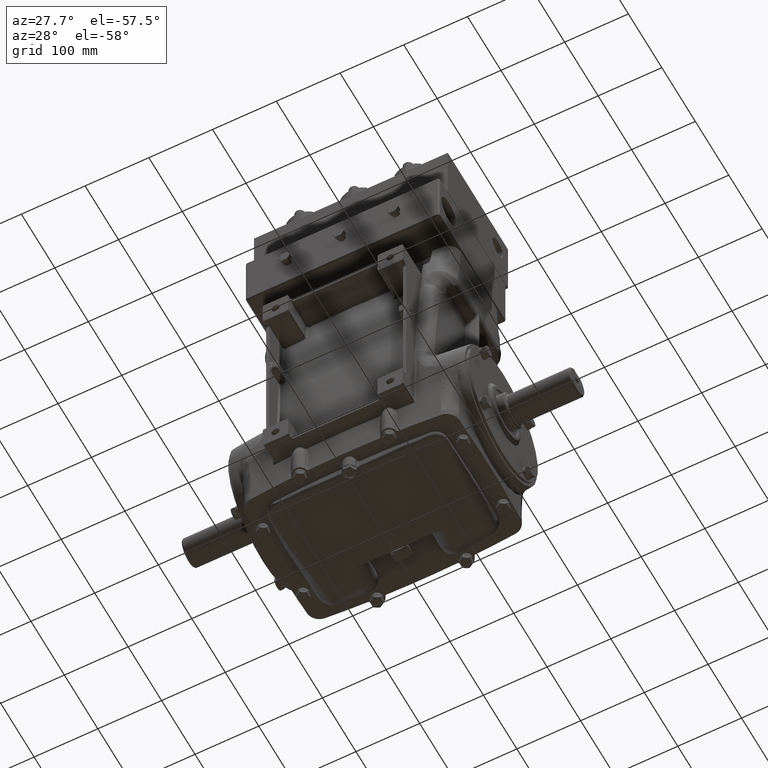
[diagram: clean part render]
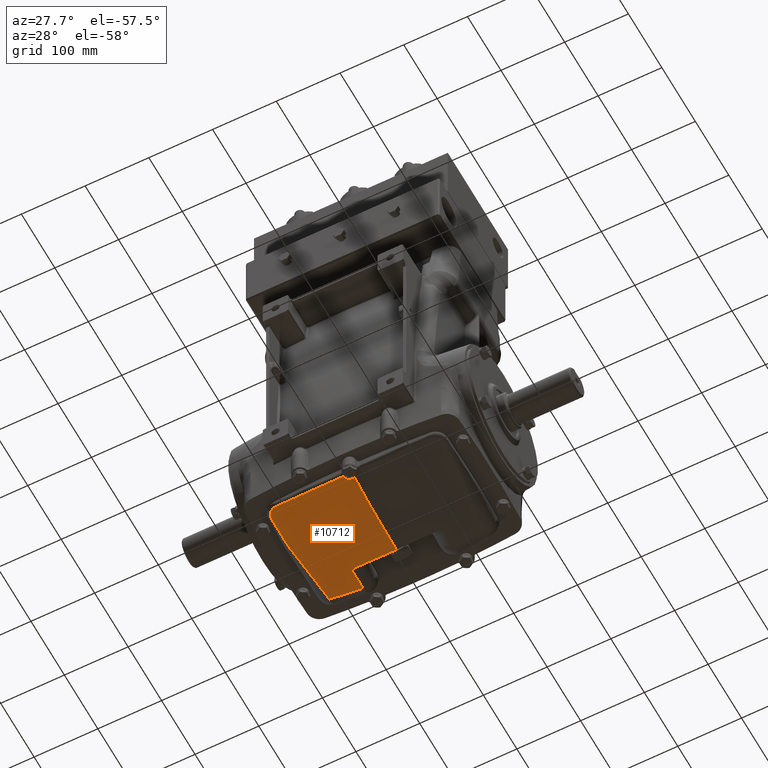
[diagram: same view with one face highlighted and labeled with its STEP entity id]
A machine part, auxiliary view. The second image highlights one B-rep face of the part: STEP entity #10712.
In plain terms, the highlighted toroidal blend (fillet) surface has major radius 300 mm and minor (blend) radius 700 mm.
Its self-contained STEP definition (entity closure, byte-faithful):
#453 = B_SPLINE_CURVE_WITH_KNOTS ( 'NONE', 3,
 ( #16055, #35450, #11074, #4051, #61835, #30515, #80458, #41617 ),
 .UNSPECIFIED., .F., .F.,
 ( 4, 2, 2, 4 ),
 ( 0.006022522450713315399, 0.007529121385804944146, 0.009035720320896573760, 0.01204891819107983299 ),
 .UNSPECIFIED. ) ;
#562 = VERTEX_POINT ( 'NONE', #38706 ) ;
#588 = CARTESIAN_POINT ( 'NONE',  ( -5.081512726748598219, -3.407563633568248207, -5.306289430408320129 ) ) ;
#838 = CARTESIAN_POINT ( 'NONE',  ( -5.071750371976681215, 0.6510181333602451659, -5.787947540946589697 ) ) ;
#1378 = B_SPLINE_CURVE_WITH_KNOTS ( 'NONE', 3,
 ( #24879, #49212, #50036, #68203, #41784, #66968 ),
 .UNSPECIFIED., .F., .F.,
 ( 4, 2, 4 ),
 ( 1.999312279308687694E-07, 0.03093238034559044405, 0.06186456075995295373 ),
 .UNSPECIFIED. ) ;
#2032 = CARTESIAN_POINT ( 'NONE',  ( -2.434261824659195828, 1.606639635857288750, -6.064947200536431104 ) ) ;
#2239 = B_SPLINE_CURVE_WITH_KNOTS ( 'NONE', 3,
 ( #26619, #44353, #6799, #57531, #76569, #13393, #45561, #27414, #20418, #588, #52557, #14619, #77784, #38179, #25802, #39785, #39378, #32805, #69535, #64954, #50947, #70750, #64547, #51750, #57941, #38568 ),
 .UNSPECIFIED., .F., .F.,
 ( 4, 2, 2, 2, 2, 2, 2, 2, 2, 2, 2, 2, 4 ),
 ( 0.000000000000000000, 0.001393468656929867412, 0.002786937313859734824, 0.005573874627719434954, 0.006967343284649294560, 0.008360811941579152431, 0.01114774925543880399, 0.01254121791236861329, 0.01393468656929842779, 0.01672162388315804812, 0.01811509254008786610, 0.01950856119701768060, 0.02229549851087730961 ),
 .UNSPECIFIED. ) ;
#3158 = ORIENTED_EDGE ( 'NONE', *, *, #50038, .T. ) ;
#4051 = CARTESIAN_POINT ( 'NONE',  ( -0.07879009264106012767, -3.369263573939517364, -5.647185192691272171 ) ) ;
#4589 = CARTESIAN_POINT ( 'NONE',  ( -5.254405996074729579, -0.7456722834129653199, -5.667711675632794766 ) ) ;
#4806 = EDGE_CURVE ( 'NONE', #50058, #33288, #1378, .T. ) ;
#4808 = CARTESIAN_POINT ( 'NONE',  ( -4.840242302779922845, 2.899656050760234027, -5.821340785861177203 ) ) ;
#5004 = CARTESIAN_POINT ( 'NONE',  ( -5.325471115806772460, -1.473329931211842192, -5.579392218848997942 ) ) ;
#5427 = CARTESIAN_POINT ( 'NONE',  ( -5.334166308895317066, -1.588840135189024672, -5.563929529875010438 ) ) ;
#5826 = CARTESIAN_POINT ( 'NONE',  ( -5.198477331368216880, -0.2868187684920702751, -5.714774087625277055 ) ) ;
#6253 = CARTESIAN_POINT ( 'NONE',  ( -0.4877294735864423081, -3.659535562739759218, -5.586873153588124197 ) ) ;
#6291 = ORIENTED_EDGE ( 'NONE', *, *, #62702, .T. ) ;
#6644 = CARTESIAN_POINT ( 'NONE',  ( -4.968017340805079840, 1.438922390327193490, -5.823707808902630845 ) ) ;
#6799 = CARTESIAN_POINT ( 'NONE',  ( -4.844032478405734032, -3.492783821194469507, -5.320111385042866736 ) ) ;
#7034 = CARTESIAN_POINT ( 'NONE',  ( -4.968713628097812141, 1.433229839344952072, -5.823538398559389151 ) ) ;
#8476 = CARTESIAN_POINT ( 'NONE',  ( 0.000000000000000000, 1.824751546699278082, 33.22893919295996312 ) ) ;
#8778 = DIRECTION ( 'NONE',  ( 0.000000000000000000, 0.000000000000000000, 1.000000000000000000 ) ) ;
#9053 = CARTESIAN_POINT ( 'NONE',  ( -2.595490492864124032, 1.628047475268865396, -6.054802391501787007 ) ) ;
#10385 = CARTESIAN_POINT ( 'NONE',  ( -5.185673076906478940, -0.1882317149526777922, -5.723883935373456744 ) ) ;
#10712 = ADVANCED_FACE ( 'NONE', ( #71637 ), #29398, .T. ) ;
#10800 = CARTESIAN_POINT ( 'NONE',  ( -5.254494047360799946, -0.7464432762214903150, -5.667626896297045747 ) ) ;
#10883 = CARTESIAN_POINT ( 'NONE',  ( -1.931853258259349948, -3.638305189545421481, -5.552868048543251334 ) ) ;
#11074 = CARTESIAN_POINT ( 'NONE',  ( -0.03935245566530805317, -3.365073462321861886, -5.648048895758050136 ) ) ;
#11207 = CARTESIAN_POINT ( 'NONE',  ( -5.325722550518120713, -1.476538987519105506, -5.578967110809579744 ) ) ;
#12831 = CARTESIAN_POINT ( 'NONE',  ( -5.021702686355935086, 1.014938988943109743, -5.808043524251670142 ) ) ;
#13242 = CARTESIAN_POINT ( 'NONE',  ( -4.934323708969340139, 1.714563867073703118, -5.831874913335743038 ) ) ;
#13393 = CARTESIAN_POINT ( 'NONE',  ( -4.950513585213516699, -3.469580393225757842, -5.311184794286596400 ) ) ;
#13860 = DIRECTION ( 'NONE',  ( 0.000000000000000000, -1.000000000000000000, 0.000000000000000000 ) ) ;
#14033 = CARTESIAN_POINT ( 'NONE',  ( -5.080195478884209415, 0.5902598933643962154, -5.784169362885123178 ) ) ;
#14619 = CARTESIAN_POINT ( 'NONE',  ( -5.140980375108047618, -3.366126144661426345, -5.306466500724023483 ) ) ;
#15021 = CARTESIAN_POINT ( 'NONE',  ( -2.812148308104203576, 1.701088795419487543, -6.040299091886773830 ) ) ;
#15538 = CARTESIAN_POINT ( 'NONE',  ( -2.812148308104203576, 1.701088795419487543, -6.040299091886773830 ) ) ;
#16055 = CARTESIAN_POINT ( 'NONE',  ( 3.842746221509609454E-15, -3.364041038235044301, -5.648261671423673747 ) ) ;
#17433 = CARTESIAN_POINT ( 'NONE',  ( -5.360178882565543645, -2.927451683223999623, -5.357800683653446860 ) ) ;
#18007 = VERTEX_POINT ( 'NONE', #44262 ) ;
#18262 = CARTESIAN_POINT ( 'NONE',  ( -5.371031495846720460, -2.478689205567711440, -5.432874113277573969 ) ) ;
#20418 = CARTESIAN_POINT ( 'NONE',  ( -5.049886546279415356, -3.426009580275169331, -5.306842600727459391 ) ) ;
#22421 = VERTEX_POINT ( 'NONE', #31253 ) ;
#22436 = CARTESIAN_POINT ( 'NONE',  ( -2.812132526087493645, 3.010549370942952496, -6.014990193079878367 ) ) ;
#22667 = B_SPLINE_CURVE_WITH_KNOTS ( 'NONE', 3,
 ( #17433, #24019, #18262, #42566, #37224, #68577, #36813, #5427, #66923, #29391, #54525, #42986, #11207, #68158, #48343, #5004, #54934, #79764, #30225, #30639, #55347, #42155, #80594, #62381, #80991, #67338, #47925, #10800, #4589, #73143, #80174, #49574, #74796, #43396, #5826, #10385, #23605, #35578, #69379, #63975, #24832, #44201, #37616, #76014, #63579, #75607, #57377, #63191, #14033, #838, #38426, #12831, #49990, #76404, #81404, #39213, #51600, #7034, #64383, #76809, #6644, #50392, #13242, #57781, #31440, #38028, #25246 ),
 .UNSPECIFIED., .F., .F.,
 ( 4, 2, 2, 1, 1, 1, 1, 1, 1, 1, 2, 2, 2, 2, 1, 1, 1, 1, 1, 1, 1, 2, 2, 2, 2, 1, 1, 1, 1, 1, 1, 2, 2, 1, 2, 2, 1, 1, 1, 1, 1, 1, 1, 1, 2, 2, 2, 4 ),
 ( 0.000000000000000000, 0.1250000000000443534, 0.1875000000000663913, 0.2187500000000772993, 0.2343750000000827116, 0.2421875000000854872, 0.2460937500000867639, 0.2480468750000874301, 0.2490234375000877631, 0.2495117187500879574, 0.2497558593750880684, 0.2500000000000881517, 0.3125000000001407763, 0.3437500000001670331, 0.3593750000001802447, 0.3671875000001869060, 0.3710937500001902922, 0.3730468750001920131, 0.3740234375001927902, 0.3745117187501931233, 0.3747558593751932343, 0.3748779296876932343, 0.3750000000001932343, 0.4375000000001768030, 0.4687500000001685319, 0.4843750000001644240, 0.4921875000001623701, 0.4960937500001613709, 0.4980468750001609268, 0.4990234375001606493, 0.4995117187501605382, 0.4997558593751604272, 0.5000000000001603162, 0.5625000000001483258, 0.5937500000001423306, 0.6250000000001362244, 0.6875000000001241229, 0.7187500000001180167, 0.7343750000001150191, 0.7421875000001134648, 0.7460937500001127987, 0.7480468750001123546, 0.7490234375001121325, 0.7495117187501119105, 0.7497558593751117995, 0.7500000000001116884, 0.8750000000000558442, 1.000000000000000000 ),
 .UNSPECIFIED. ) ;
#23605 = CARTESIAN_POINT ( 'NONE',  ( -5.179094886603560433, -0.1379931484735895664, -5.728442395348172234 ) ) ;
#24019 = CARTESIAN_POINT ( 'NONE',  ( -5.369261606014290145, -2.709057018856346311, -5.395138128778475206 ) ) ;
#24511 = EDGE_CURVE ( 'NONE', #77073, #18007, #47761, .T. ) ;
#24832 = CARTESIAN_POINT ( 'NONE',  ( -5.163951931119646233, -0.02408900375344309383, -5.738379187375463708 ) ) ;
#24879 = CARTESIAN_POINT ( 'NONE',  ( -3.346919348482985394E-33, 1.582229971301458704, -6.140072423287879388 ) ) ;
#25246 = CARTESIAN_POINT ( 'NONE',  ( -4.840242302779922845, 2.899656050760234027, -5.821340785861177203 ) ) ;
#25802 = CARTESIAN_POINT ( 'NONE',  ( -5.218333242062025867, -3.289595542081743762, -5.310752198899931109 ) ) ;
#26619 = CARTESIAN_POINT ( 'NONE',  ( -4.807788219395104257, -3.496116492186950975, -5.323983456037651329 ) ) ;
#27414 = CARTESIAN_POINT ( 'NONE',  ( -5.033724942537766367, -3.434453761081072365, -5.307302620882437871 ) ) ;
#28954 = B_SPLINE_CURVE_WITH_KNOTS ( 'NONE', 3,
 ( #65796, #73222, #46794, #67005, #48426, #71991, #34438, #41822, #78617, #73645 ),
 .UNSPECIFIED., .F., .F.,
 ( 4, 2, 2, 2, 4 ),
 ( 0.02146166848574504460, 0.02380266222305024715, 0.02614365596035545317, 0.02848464969766065918, 0.03082564343496586173 ),
 .UNSPECIFIED. ) ;
#29391 = CARTESIAN_POINT ( 'NONE',  ( -5.327698088664722498, -1.502005598826657407, -5.575584463984370132 ) ) ;
#29398 = TOROIDAL_SURFACE ( 'NONE', #53030, 11.81102362204724265, 27.55905511811023700 ) ;
#29525 = EDGE_CURVE ( 'NONE', #38693, #77073, #22667, .T. ) ;
#30225 = CARTESIAN_POINT ( 'NONE',  ( -5.288675306705783896, -1.063430563485664671, -5.631219784365756098 ) ) ;
#30280 = ORIENTED_EDGE ( 'NONE', *, *, #70541, .T. ) ;
#30355 = VERTEX_POINT ( 'NONE', #6253 ) ;
#30515 = CARTESIAN_POINT ( 'NONE',  ( -0.1563399999800972606, -3.384940182885188165, -5.643952863922299557 ) ) ;
#30622 = EDGE_LOOP ( 'NONE', ( #48159, #43635, #51800, #30280, #6291, #3158, #57282, #63600, #40933, #33682 ) ) ;
#30639 = CARTESIAN_POINT ( 'NONE',  ( -5.282356873758459415, -1.001465767612395252, -5.638603529623959609 ) ) ;
#31227 = AXIS2_PLACEMENT_3D ( 'NONE', #47959, #79394, #8778 ) ;
#31253 = CARTESIAN_POINT ( 'NONE',  ( 3.842746221509609454E-15, -3.364041038235044301, -5.648261671423673747 ) ) ;
#31440 = CARTESIAN_POINT ( 'NONE',  ( -4.864105943301919588, 2.460262575900201032, -5.833211702425360023 ) ) ;
#32366 = CARTESIAN_POINT ( 'NONE',  ( -2.812132526087493645, 3.010549370942952496, -6.014990193079878367 ) ) ;
#32805 = CARTESIAN_POINT ( 'NONE',  ( -5.281568287909769843, -3.201588821601273338, -5.318780719499171639 ) ) ;
#32965 = B_SPLINE_CURVE_WITH_KNOTS ( 'NONE', 3,
 ( #58583, #34644, #59796, #78018, #40009, #9053, #45392, #40828, #47011, #2032 ),
 .UNSPECIFIED., .F., .F.,
 ( 4, 2, 2, 2, 4 ),
 ( -2.857996328437915161E-05, 0.002468332397666009228, 0.004965244758616397733, 0.007462157119566786671, 0.009959069480517175610 ),
 .UNSPECIFIED. ) ;
#33288 = VERTEX_POINT ( 'NONE', #72390 ) ;
#33682 = ORIENTED_EDGE ( 'NONE', *, *, #63178, .T. ) ;
#33811 = VERTEX_POINT ( 'NONE', #15538 ) ;
#33858 = CIRCLE ( 'NONE', #31227, 27.55905511811023700 ) ;
#34422 = CARTESIAN_POINT ( 'NONE',  ( -3.346919348482985394E-33, 1.582229971301458704, -6.140072423287879388 ) ) ;
#34438 = CARTESIAN_POINT ( 'NONE',  ( -0.4217040767749661301, -3.559235909095109118, -5.607836417959802588 ) ) ;
#34644 = CARTESIAN_POINT ( 'NONE',  ( -2.781892614608939329, 1.688684315025650751, -6.042409957934991027 ) ) ;
#35450 = CARTESIAN_POINT ( 'NONE',  ( -0.01966230270327786606, -3.364041038235045633, -5.648261671423675523 ) ) ;
#35578 = CARTESIAN_POINT ( 'NONE',  ( -5.171109672741192043, -0.07772694846112994382, -5.733748570491312258 ) ) ;
#36813 = CARTESIAN_POINT ( 'NONE',  ( -5.342057100842868778, -1.703464535393951484, -5.548258688867559130 ) ) ;
#37224 = CARTESIAN_POINT ( 'NONE',  ( -5.357701259027894736, -1.990861342919672872, -5.507261087595051841 ) ) ;
#37616 = CARTESIAN_POINT ( 'NONE',  ( -5.163212558826809406, -0.01856817942538038779, -5.738850900110336717 ) ) ;
#38028 = CARTESIAN_POINT ( 'NONE',  ( -4.848991911919143583, 2.687846806962476798, -5.828587178519216039 ) ) ;
#38179 = CARTESIAN_POINT ( 'NONE',  ( -5.206194522468571506, -3.303374770522423454, -5.309764036319435832 ) ) ;
#38426 = CARTESIAN_POINT ( 'NONE',  ( -5.046335931002461805, 0.8329406397847033405, -5.798660693579442693 ) ) ;
#38568 = CARTESIAN_POINT ( 'NONE',  ( -5.360178882565543645, -2.927451683223999623, -5.357800683653446860 ) ) ;
#38693 = VERTEX_POINT ( 'NONE', #50666 ) ;
#38706 = CARTESIAN_POINT ( 'NONE',  ( -0.2297784026368260013, -3.413870119762763000, -5.637982275400829302 ) ) ;
#39213 = CARTESIAN_POINT ( 'NONE',  ( -4.971155850280976729, 1.413306203756706125, -5.822936717939398932 ) ) ;
#39378 = CARTESIAN_POINT ( 'NONE',  ( -5.251736528445274388, -3.246633039124112940, -5.314367873378915696 ) ) ;
#39785 = CARTESIAN_POINT ( 'NONE',  ( -5.241086578144337871, -3.261236225363271846, -5.313054194956410292 ) ) ;
#40009 = CARTESIAN_POINT ( 'NONE',  ( -2.658460200148967001, 1.645069077267908408, -6.050707771248394096 ) ) ;
#40254 = DIRECTION ( 'NONE',  ( 0.000000000000000000, 0.000000000000000000, -1.000000000000000000 ) ) ;
#40828 = CARTESIAN_POINT ( 'NONE',  ( -2.499580588558071526, 1.610597889679213468, -6.060890936602916668 ) ) ;
#40933 = ORIENTED_EDGE ( 'NONE', *, *, #54730, .T. ) ;
#41617 = CARTESIAN_POINT ( 'NONE',  ( -0.2297784026368260013, -3.413870119762763000, -5.637982275400829302 ) ) ;
#41784 = CARTESIAN_POINT ( 'NONE',  ( -2.029067814688756410, 1.598504518523331086, -6.089984517228142380 ) ) ;
#41822 = CARTESIAN_POINT ( 'NONE',  ( -0.4577162347525901009, -3.607212763739313210, -5.597826739627022263 ) ) ;
#41833 = CARTESIAN_POINT ( 'NONE',  ( -1.210477209355807826, -3.654505220724530101, -5.578813219982557747 ) ) ;
#42155 = CARTESIAN_POINT ( 'NONE',  ( -5.267093945986094816, -0.8586844433705153046, -5.655109460783635633 ) ) ;
#42566 = CARTESIAN_POINT ( 'NONE',  ( -5.362439750434917940, -2.115075687759506717, -5.488755989579633621 ) ) ;
#42986 = CARTESIAN_POINT ( 'NONE',  ( -5.326007232351605225, -1.480180942376793762, -5.578484348860531128 ) ) ;
#43076 = CARTESIAN_POINT ( 'NONE',  ( -3.371873501537796525, -3.583773380137238895, -5.465286664663715044 ) ) ;
#43396 = CARTESIAN_POINT ( 'NONE',  ( -5.206544025624651795, -0.3500233411345941570, -5.708710549602758810 ) ) ;
#43635 = ORIENTED_EDGE ( 'NONE', *, *, #74456, .T. ) ;
#44201 = CARTESIAN_POINT ( 'NONE',  ( -5.163434554022859224, -0.02022539653561571463, -5.738709404092870336 ) ) ;
#44262 = CARTESIAN_POINT ( 'NONE',  ( -2.812132526087493645, 3.010549370942952496, -6.014990193079878367 ) ) ;
#44319 = CARTESIAN_POINT ( 'NONE',  ( -4.840242302779922845, 2.899656050760234027, -5.821340785861177203 ) ) ;
#44353 = CARTESIAN_POINT ( 'NONE',  ( -4.825956977166343087, -3.494867071439379025, -5.321965457097936003 ) ) ;
#44728 = CARTESIAN_POINT ( 'NONE',  ( -4.166371834084402259, 2.946303581037741814, -5.903031597596715585 ) ) ;
#45392 = CARTESIAN_POINT ( 'NONE',  ( -2.563748800980047982, 1.620961166111996477, -6.056834751248353577 ) ) ;
#45561 = CARTESIAN_POINT ( 'NONE',  ( -4.984472006344477180, -3.457394581205895268, -5.309210827171242819 ) ) ;
#46776 = CARTESIAN_POINT ( 'NONE',  ( -2.812149532266563501, 2.137760349558801121, -6.042263470602809328 ) ) ;
#46794 = CARTESIAN_POINT ( 'NONE',  ( -0.2840101546505077179, -3.441600826494962906, -5.632253356662554111 ) ) ;
#47011 = CARTESIAN_POINT ( 'NONE',  ( -2.467157795062526748, 1.607300091274789677, -6.062914527770900897 ) ) ;
#47691 = B_SPLINE_CURVE_WITH_KNOTS ( 'NONE', 3,
 ( #55019, #41833, #10883, #43076, #80265, #55439 ),
 .UNSPECIFIED., .F., .F.,
 ( 4, 2, 4 ),
 ( 0.01236748594910167323, 0.06737170396115277349, 0.1223759219732038633 ),
 .UNSPECIFIED. ) ;
#47761 = B_SPLINE_CURVE_WITH_KNOTS ( 'NONE', 3,
 ( #44319, #44728, #69095, #32366 ),
 .UNSPECIFIED., .F., .F.,
 ( 4, 4 ),
 ( 0.000000000000000000, 0.05182488106915178472 ),
 .UNSPECIFIED. ) ;
#47925 = CARTESIAN_POINT ( 'NONE',  ( -5.254699371332353763, -0.7482418489130857608, -5.667429056045329538 ) ) ;
#47959 = CARTESIAN_POINT ( 'NONE',  ( 0.000000000000000000, 1.824751546699278082, 21.41791557091272225 ) ) ;
#48159 = ORIENTED_EDGE ( 'NONE', *, *, #4806, .F. ) ;
#48343 = CARTESIAN_POINT ( 'NONE',  ( -5.325518707966256038, -1.473936808473037097, -5.579311844394084119 ) ) ;
#48426 = CARTESIAN_POINT ( 'NONE',  ( -0.3576042505593979848, -3.494577326924172223, -5.621279233931828934 ) ) ;
#48842 = VERTEX_POINT ( 'NONE', #80543 ) ;
#49212 = CARTESIAN_POINT ( 'NONE',  ( -0.4060737577237384932, 1.582229971301458038, -6.140072423287883829 ) ) ;
#49574 = CARTESIAN_POINT ( 'NONE',  ( -5.242719921505767822, -0.6433876430860706597, -5.678955230862253067 ) ) ;
#49990 = CARTESIAN_POINT ( 'NONE',  ( -4.994341197797926846, 1.227375374042257494, -5.816664486904348230 ) ) ;
#50036 = CARTESIAN_POINT ( 'NONE',  ( -0.8119747735864564220, 1.584264967571028748, -6.133809348770810743 ) ) ;
#50038 = EDGE_CURVE ( 'NONE', #48842, #38693, #2239, .T. ) ;
#50058 = VERTEX_POINT ( 'NONE', #34422 ) ;
#50392 = CARTESIAN_POINT ( 'NONE',  ( -4.967966940072961357, 1.439334643286055870, -5.823720037227320567 ) ) ;
#50666 = CARTESIAN_POINT ( 'NONE',  ( -5.360178882565543645, -2.927451683223999623, -5.357800683653446860 ) ) ;
#50947 = CARTESIAN_POINT ( 'NONE',  ( -5.326361990746772967, -3.102858777173423732, -5.330900886658606730 ) ) ;
#51600 = CARTESIAN_POINT ( 'NONE',  ( -4.969526799863153599, 1.426588576677151110, -5.823339350914161550 ) ) ;
#51750 = CARTESIAN_POINT ( 'NONE',  ( -5.353946565448759465, -2.998995579519901256, -5.345947324219060270 ) ) ;
#51800 = ORIENTED_EDGE ( 'NONE', *, *, #78191, .T. ) ;
#52557 = CARTESIAN_POINT ( 'NONE',  ( -5.096777293988907331, -3.397681871397706832, -5.306199164813016012 ) ) ;
#53030 = AXIS2_PLACEMENT_3D ( 'NONE', #8476, #13860, #40254 ) ;
#54525 = CARTESIAN_POINT ( 'NONE',  ( -5.326574133655283205, -1.487460984550732057, -5.577518350138437775 ) ) ;
#54730 = EDGE_CURVE ( 'NONE', #18007, #33811, #77378, .T. ) ;
#54934 = CARTESIAN_POINT ( 'NONE',  ( -5.316715640258879993, -1.361743683261042337, -5.594168467383742183 ) ) ;
#55019 = CARTESIAN_POINT ( 'NONE',  ( -0.4877294735864423081, -3.659535562739759218, -5.586873153588124197 ) ) ;
#55347 = CARTESIAN_POINT ( 'NONE',  ( -5.272281251762199084, -0.9065982657666091793, -5.649617736623124387 ) ) ;
#55439 = CARTESIAN_POINT ( 'NONE',  ( -4.807788219395104257, -3.496116492186950975, -5.323983456037651329 ) ) ;
#57282 = ORIENTED_EDGE ( 'NONE', *, *, #29525, .T. ) ;
#57377 = CARTESIAN_POINT ( 'NONE',  ( -5.122024489410215153, 0.2868460802058692138, -5.763699332482132398 ) ) ;
#57531 = CARTESIAN_POINT ( 'NONE',  ( -4.879996799677580377, -3.486948360581074713, -5.316731123404999870 ) ) ;
#57781 = CARTESIAN_POINT ( 'NONE',  ( -4.906771388503366360, 1.973621814741317371, -5.834855720500262244 ) ) ;
#57941 = CARTESIAN_POINT ( 'NONE',  ( -5.358678364081207235, -2.963529652962363592, -5.351632691506574169 ) ) ;
#58583 = CARTESIAN_POINT ( 'NONE',  ( -2.812148308104203576, 1.701088795419487543, -6.040299091886773830 ) ) ;
#59796 = CARTESIAN_POINT ( 'NONE',  ( -2.751387458887337711, 1.676816387502252592, -6.044497474844345852 ) ) ;
#61835 = CARTESIAN_POINT ( 'NONE',  ( -0.09848937057379751614, -3.372430618418078563, -5.646532334647739404 ) ) ;
#62381 = CARTESIAN_POINT ( 'NONE',  ( -5.257555849138635828, -0.7733643939540989498, -5.664656283368848300 ) ) ;
#62702 = EDGE_CURVE ( 'NONE', #30355, #48842, #47691, .T. ) ;
#63178 = EDGE_CURVE ( 'NONE', #33811, #33288, #32965, .T. ) ;
#63191 = CARTESIAN_POINT ( 'NONE',  ( -5.096980045203364895, 0.4688844028321828006, -5.776220967374339210 ) ) ;
#63579 = CARTESIAN_POINT ( 'NONE',  ( -5.162979830439747175, -0.01683111939187460424, -5.738999142381384644 ) ) ;
#63600 = ORIENTED_EDGE ( 'NONE', *, *, #24511, .T. ) ;
#63975 = CARTESIAN_POINT ( 'NONE',  ( -5.164984239179561953, -0.03180328750818615935, -5.737718521259472126 ) ) ;
#64383 = CARTESIAN_POINT ( 'NONE',  ( -4.968307380608080415, 1.436550489624570215, -5.823637355180904862 ) ) ;
#64547 = CARTESIAN_POINT ( 'NONE',  ( -5.342144275654240992, -3.051303830555013974, -5.338125044618379000 ) ) ;
#64954 = CARTESIAN_POINT ( 'NONE',  ( -5.319986711889992392, -3.119926642901834413, -5.328644194265905298 ) ) ;
#65796 = CARTESIAN_POINT ( 'NONE',  ( -0.2297784026368260013, -3.413870119762763000, -5.637982275400829302 ) ) ;
#66923 = CARTESIAN_POINT ( 'NONE',  ( -5.329906623145219235, -1.531032947888561813, -5.571709221407674661 ) ) ;
#66968 = CARTESIAN_POINT ( 'NONE',  ( -2.434261824659195828, 1.606639635857288750, -6.064947200536431104 ) ) ;
#67005 = CARTESIAN_POINT ( 'NONE',  ( -0.3339704265119708415, -3.475526078226704563, -5.625229186685603011 ) ) ;
#67338 = CARTESIAN_POINT ( 'NONE',  ( -5.255109503198851506, -0.7518373521915462376, -5.667033288613509079 ) ) ;
#68158 = CARTESIAN_POINT ( 'NONE',  ( -5.325600280168608869, -1.474977735342298812, -5.579173957771858205 ) ) ;
#68203 = CARTESIAN_POINT ( 'NONE',  ( -1.623431635602357481, 1.592401253405402173, -6.108768435804607932 ) ) ;
#68577 = CARTESIAN_POINT ( 'NONE',  ( -5.347746349722945602, -1.800017203531916410, -5.534653766228270655 ) ) ;
#69095 = CARTESIAN_POINT ( 'NONE',  ( -3.490336519798898696, 2.983315668818144140, -5.967567498589518848 ) ) ;
#69379 = CARTESIAN_POINT ( 'NONE',  ( -5.167039075899904077, -0.04718013345005189763, -5.736396295773646514 ) ) ;
#69535 = CARTESIAN_POINT ( 'NONE',  ( -5.298649251694552476, -3.169923180994641765, -5.322347823598065020 ) ) ;
#70541 = EDGE_CURVE ( 'NONE', #562, #30355, #28954, .T. ) ;
#70750 = CARTESIAN_POINT ( 'NONE',  ( -5.337421209621137308, -3.068590556601563879, -5.335636005610887800 ) ) ;
#71637 = FACE_OUTER_BOUND ( 'NONE', #30622, .T. ) ;
#71991 = CARTESIAN_POINT ( 'NONE',  ( -0.4017209433856091527, -3.536680020508904398, -5.612531385695472608 ) ) ;
#72390 = CARTESIAN_POINT ( 'NONE',  ( -2.434261824659195828, 1.606639635857288750, -6.064947200536431104 ) ) ;
#72788 = CARTESIAN_POINT ( 'NONE',  ( -2.812144280299276655, 2.574247221612352643, -6.033827933789728704 ) ) ;
#73143 = CARTESIAN_POINT ( 'NONE',  ( -5.254347282928314655, -0.7451582491092477722, -5.667768193110310548 ) ) ;
#73222 = CARTESIAN_POINT ( 'NONE',  ( -0.2576272840699539435, -3.426672212073858859, -5.635338884855387143 ) ) ;
#73645 = CARTESIAN_POINT ( 'NONE',  ( -0.4877294735864423081, -3.659535562739759218, -5.586873153588124197 ) ) ;
#74456 = EDGE_CURVE ( 'NONE', #50058, #22421, #33858, .T. ) ;
#74796 = CARTESIAN_POINT ( 'NONE',  ( -5.229358085738220474, -0.5320842614292385919, -5.690705989168509227 ) ) ;
#75607 = CARTESIAN_POINT ( 'NONE',  ( -5.146668262404692662, 0.1048944520025525684, -5.749381706151599047 ) ) ;
#76014 = CARTESIAN_POINT ( 'NONE',  ( -5.163064503765196989, -0.01746306014009076438, -5.738945225080988699 ) ) ;
#76404 = CARTESIAN_POINT ( 'NONE',  ( -4.981005914649504263, 1.333616335777254802, -5.820393855862480592 ) ) ;
#76569 = CARTESIAN_POINT ( 'NONE',  ( -4.897888106521786078, -3.483187433946809186, -5.315206216569228204 ) ) ;
#76809 = CARTESIAN_POINT ( 'NONE',  ( -4.968133347057218430, 1.437973629507112383, -5.823679643619483315 ) ) ;
#77073 = VERTEX_POINT ( 'NONE', #4808 ) ;
#77378 = B_SPLINE_CURVE_WITH_KNOTS ( 'NONE', 3,
 ( #22436, #72788, #46776, #15021 ),
 .UNSPECIFIED., .F., .F.,
 ( 4, 4 ),
 ( 0.000000000000000000, 0.03326646946209799866 ),
 .UNSPECIFIED. ) ;
#77784 = CARTESIAN_POINT ( 'NONE',  ( -5.168341137774181249, -3.342557198949430042, -5.307357947498045903 ) ) ;
#78018 = CARTESIAN_POINT ( 'NONE',  ( -2.689715663435853443, 1.655026308472133056, -6.048643496143031761 ) ) ;
#78191 = EDGE_CURVE ( 'NONE', #22421, #562, #453, .T. ) ;
#78617 = CARTESIAN_POINT ( 'NONE',  ( -0.4737448369408720494, -3.632634043546059122, -5.592511999654440125 ) ) ;
#79394 = DIRECTION ( 'NONE',  ( -1.000000000000000000, -0.000000000000000000, -0.000000000000000000 ) ) ;
#79764 = CARTESIAN_POINT ( 'NONE',  ( -5.306446629312242536, -1.245488058293945821, -5.609023974525473299 ) ) ;
#80174 = CARTESIAN_POINT ( 'NONE',  ( -5.254311146328292104, -0.7448419227855246350, -5.667802968163186073 ) ) ;
#80265 = CARTESIAN_POINT ( 'NONE',  ( -4.090517692144737261, -3.545441420707249325, -5.403650496663405356 ) ) ;
#80458 = CARTESIAN_POINT ( 'NONE',  ( -0.1936990375712535351, -3.397284485499378892, -5.641406895981324610 ) ) ;
#80543 = CARTESIAN_POINT ( 'NONE',  ( -4.807788219395104257, -3.496116492186950975, -5.323983456037651329 ) ) ;
#80594 = CARTESIAN_POINT ( 'NONE',  ( -5.260779149100231145, -0.8019445141052691239, -5.661480718745800722 ) ) ;
#80991 = CARTESIAN_POINT ( 'NONE',  ( -5.255927702950783598, -0.7590217903975217117, -5.666241408260324519 ) ) ;
#81404 = CARTESIAN_POINT ( 'NONE',  ( -4.974424776607643928, 1.386742074371388744, -5.822113300647738576 ) ) ;